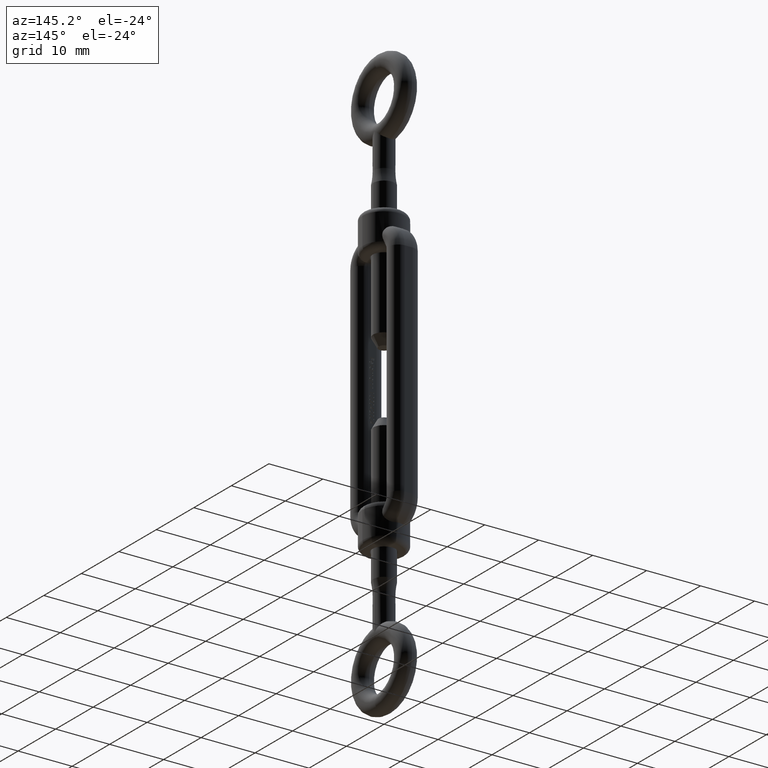
[diagram: clean part render]
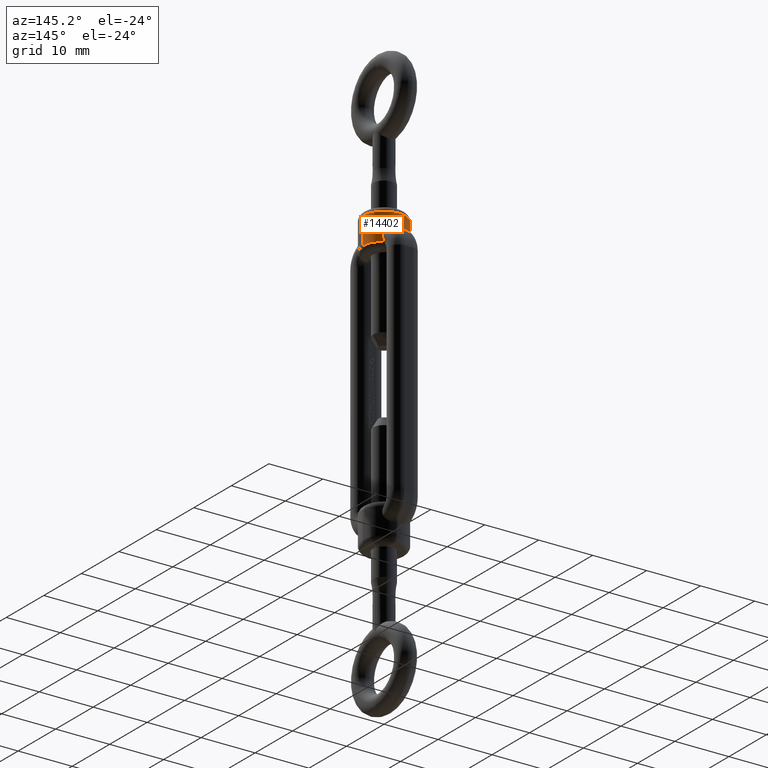
[diagram: same view with one face highlighted and labeled with its STEP entity id]
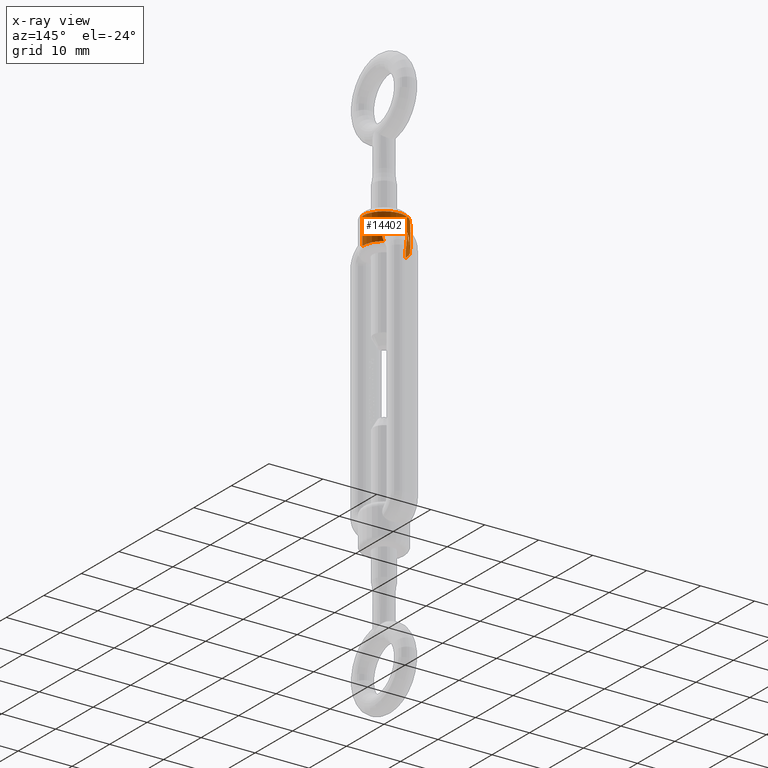
[diagram: x-ray of the same camera — body ghosted, the highlighted face saturated]
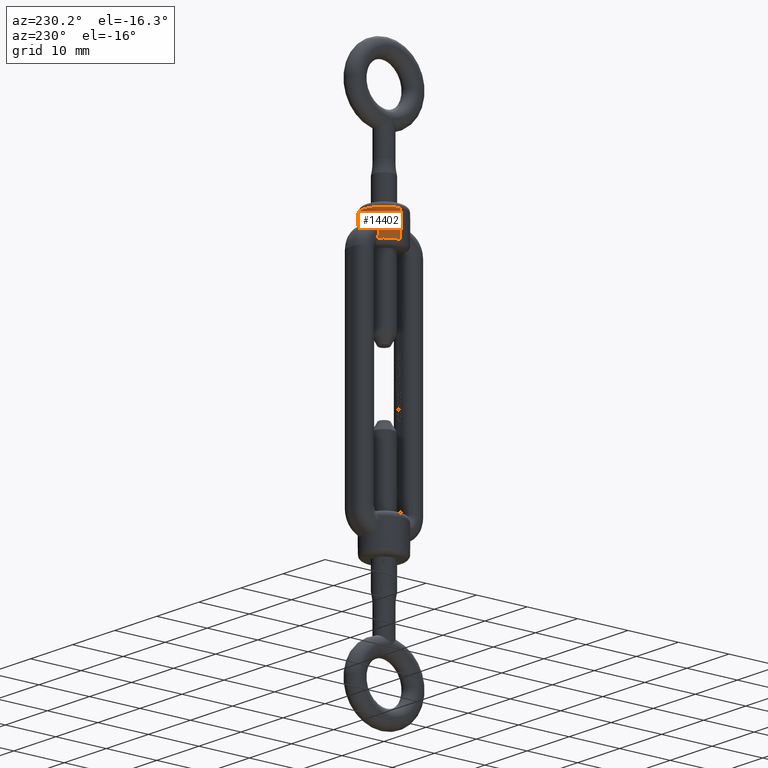
[diagram: same view with one face highlighted and labeled with its STEP entity id]
A machine part, auxiliary view. The second image highlights one B-rep face of the part: STEP entity #14402.
The next image is the same camera in x-ray: the body ghosted, the highlighted face saturated — about 0% of this face is hidden behind the body in this view.
A second angle (auxiliary view) of the same face is appended — the face is thin or edge-on in the first view.
In plain terms, the highlighted cylindrical surface (edge-blend (fillet) strip) has radius 4 mm, axis along (0, 0, 1).
Its self-contained STEP definition (entity closure, byte-faithful):
#44 = B_SPLINE_CURVE_WITH_KNOTS ( 'NONE', 3,
 ( #12608, #4711, #7086, #9962, #164, #8819 ),
 .UNSPECIFIED., .F., .F.,
 ( 4, 2, 4 ),
 ( 0.01544804769780907400, 0.01619815528980365900, 0.01694826288179824400 ),
 .UNSPECIFIED. ) ;
#116 = VERTEX_POINT ( 'NONE', #6090 ) ;
#149 = CARTESIAN_POINT ( 'NONE',  ( -3.751007808618376200, 1.436732997976390800, 23.84973040197650500 ) ) ;
#164 = CARTESIAN_POINT ( 'NONE',  ( -0.5030686637908309300, 3.976194005394788600, 24.59054489174957300 ) ) ;
#261 = VERTEX_POINT ( 'NONE', #11593 ) ;
#341 = CARTESIAN_POINT ( 'NONE',  ( -3.999746300806086700, 0.04505029620504721900, 26.00000000000000400 ) ) ;
#567 = EDGE_CURVE ( 'NONE', #12286, #14681, #7675, .T. ) ;
#644 = DIRECTION ( 'NONE',  ( 0.0000000000000000000, 0.0000000000000000000, -1.000000000000000000 ) ) ;
#734 = EDGE_CURVE ( 'NONE', #2989, #13891, #4390, .T. ) ;
#755 = VERTEX_POINT ( 'NONE', #2348 ) ;
#896 = VECTOR ( 'NONE', #10374, 1000.000000000000000 ) ;
#985 = CARTESIAN_POINT ( 'NONE',  ( -0.9102807958134557800, 3.898463142923327400, 24.62512443992188000 ) ) ;
#1045 = DIRECTION ( 'NONE',  ( -0.9947591092094586500, -0.1022463429409802100, 0.0000000000000000000 ) ) ;
#1156 = VERTEX_POINT ( 'NONE', #15245 ) ;
#1205 = B_SPLINE_CURVE_WITH_KNOTS ( 'NONE', 3,
 ( #16442, #12308, #4401, #5743 ),
 .UNSPECIFIED., .F., .F.,
 ( 4, 4 ),
 ( 0.0000000000000000000, 1.000000000000000000 ),
 .UNSPECIFIED. ) ;
#1614 = ORIENTED_EDGE ( 'NONE', *, *, #5970, .T. ) ;
#1664 = CARTESIAN_POINT ( 'NONE',  ( -3.580343073188381200, 1.783576036582718200, 26.00000000000001100 ) ) ;
#1675 = DIRECTION ( 'NONE',  ( -0.0000000000000000000, -0.0000000000000000000, 1.000000000000000000 ) ) ;
#1724 = CARTESIAN_POINT ( 'NONE',  ( 2.381679117500231000, 3.214948020150076000, 23.71540290496990300 ) ) ;
#1776 = CARTESIAN_POINT ( 'NONE',  ( 2.497682262829631600, 3.124604971914043600, 23.24924549251396800 ) ) ;
#1852 = CARTESIAN_POINT ( 'NONE',  ( -2.285367486464756800, 3.282848679395671300, 22.00000000000001100 ) ) ;
#2034 = ORIENTED_EDGE ( 'NONE', *, *, #17052, .T. ) ;
#2086 = CARTESIAN_POINT ( 'NONE',  ( -3.999999962768070900, 6.965656207273475000E-010, 25.73349608423637500 ) ) ;
#2089 = DIRECTION ( 'NONE',  ( -0.9999365752015174600, 0.01126257405126154600, 0.0000000000000000000 ) ) ;
#2109 = VERTEX_POINT ( 'NONE', #8388 ) ;
#2112 = CARTESIAN_POINT ( 'NONE',  ( -2.432289659441127400, 3.175789167133020300, 23.57552887162764300 ) ) ;
#2348 = CARTESIAN_POINT ( 'NONE',  ( -3.343884918635637000, 2.195093084796469400, 23.28632478632479400 ) ) ;
#2507 = AXIS2_PLACEMENT_3D ( 'NONE', #14083, #11742, #2089 ) ;
#2635 = ORIENTED_EDGE ( 'NONE', *, *, #4823, .T. ) ;
#2757 = ORIENTED_EDGE ( 'NONE', *, *, #3494, .F. ) ;
#2784 = ORIENTED_EDGE ( 'NONE', *, *, #567, .T. ) ;
#2962 = DIRECTION ( 'NONE',  ( 0.0000000000000000000, 0.0000000000000000000, 1.000000000000000000 ) ) ;
#2989 = VERTEX_POINT ( 'NONE', #14394 ) ;
#3004 = DIRECTION ( 'NONE',  ( -0.0000000000000000000, -0.0000000000000000000, 1.000000000000000000 ) ) ;
#3051 = CARTESIAN_POINT ( 'NONE',  ( 2.232963278390116500, 3.319964034197485400, 23.98604057360628900 ) ) ;
#3121 = CARTESIAN_POINT ( 'NONE',  ( 4.000000000000017800, 4.730167233106488900E-017, 21.00000000000000000 ) ) ;
#3234 = VERTEX_POINT ( 'NONE', #8894 ) ;
#3452 = CARTESIAN_POINT ( 'NONE',  ( -1.915807076917278600, 3.513640479461432900, 24.31116552042230300 ) ) ;
#3460 = DIRECTION ( 'NONE',  ( -0.0000000000000000000, -0.0000000000000000000, 1.000000000000000000 ) ) ;
#3467 = CARTESIAN_POINT ( 'NONE',  ( -3.999230877813573700, 0.07843714644613913900, 23.35416666666667100 ) ) ;
#3494 = EDGE_CURVE ( 'NONE', #16789, #7013, #10937, .T. ) ;
#3517 = CARTESIAN_POINT ( 'NONE',  ( -2.496662105179641600, 3.125435674280249800, 23.25929025545020700 ) ) ;
#3558 = VERTEX_POINT ( 'NONE', #3467 ) ;
#3678 = DIRECTION ( 'NONE',  ( -0.0000000000000000000, -0.0000000000000000000, 1.000000000000000000 ) ) ;
#3688 = CARTESIAN_POINT ( 'NONE',  ( -1.519110280752453500, 3.703287374382887800, 24.52220438770821100 ) ) ;
#3760 = VERTEX_POINT ( 'NONE', #14406 ) ;
#3773 = LINE ( 'NONE', #4378, #6295 ) ;
#3917 = VERTEX_POINT ( 'NONE', #10146 ) ;
#3947 = DIRECTION ( 'NONE',  ( 0.0000000000000000000, 0.0000000000000000000, -1.000000000000000000 ) ) ;
#4034 = VERTEX_POINT ( 'NONE', #13330 ) ;
#4143 = EDGE_LOOP ( 'NONE', ( #2784, #13446, #13108, #11016, #6956, #2635, #5831, #9999, #2757, #11992, #10859, #13642, #4812 ) ) ;
#4181 = DIRECTION ( 'NONE',  ( -0.8359712296589055800, 0.5487732711991149000, 0.0000000000000000000 ) ) ;
#4234 = CARTESIAN_POINT ( 'NONE',  ( -3.580343073188381200, 1.783576036582718200, 26.00000000000001100 ) ) ;
#4294 = AXIS2_PLACEMENT_3D ( 'NONE', #4370, #12173, #16078 ) ;
#4370 = CARTESIAN_POINT ( 'NONE',  ( 0.0000000000000000000, 4.730167233106488900E-017, 25.45726495726496500 ) ) ;
#4378 = CARTESIAN_POINT ( 'NONE',  ( -3.933699122301495900, 0.7252663064037766500, 25.45726495726496500 ) ) ;
#4387 = CARTESIAN_POINT ( 'NONE',  ( 1.918844120918642600, 3.512028818488437800, 24.30915524562822900 ) ) ;
#4390 = LINE ( 'NONE', #12812, #896 ) ;
#4401 = CARTESIAN_POINT ( 'NONE',  ( -3.985038137113845900, 0.3764373470795593400, 25.11805555555556100 ) ) ;
#4563 = ORIENTED_EDGE ( 'NONE', *, *, #14780, .T. ) ;
#4570 = ORIENTED_EDGE ( 'NONE', *, *, #8913, .F. ) ;
#4703 = LINE ( 'NONE', #1664, #5550 ) ;
#4704 = CARTESIAN_POINT ( 'NONE',  ( -3.999915431814149400, 0.03003416577232715200, 25.91116536145137100 ) ) ;
#4711 = CARTESIAN_POINT ( 'NONE',  ( 0.5020925574299954800, 3.976380329876120900, 24.59046200296932100 ) ) ;
#4719 = DIRECTION ( 'NONE',  ( -0.9834247805753698600, 0.1813165766009433900, 0.0000000000000000000 ) ) ;
#4812 = ORIENTED_EDGE ( 'NONE', *, *, #13356, .T. ) ;
#4823 = EDGE_CURVE ( 'NONE', #10771, #10668, #7756, .T. ) ;
#4832 = DIRECTION ( 'NONE',  ( -0.0000000000000000000, -0.0000000000000000000, 1.000000000000000000 ) ) ;
#4916 = VECTOR ( 'NONE', #6039, 1000.000000000000000 ) ;
#4959 = EDGE_LOOP ( 'NONE', ( #4570, #13208, #5283, #11386, #6690, #11414, #4563, #1614, #6594, #2034, #5389 ) ) ;
#5022 = CARTESIAN_POINT ( 'NONE',  ( -1.371804169242107200, 3.760827196330431800, 24.56759669714697100 ) ) ;
#5027 = CARTESIAN_POINT ( 'NONE',  ( 0.0000000000000000000, 4.730167233106488900E-017, 23.35416666666666800 ) ) ;
#5181 = CARTESIAN_POINT ( 'NONE',  ( 0.0000000000000000000, 4.730167233106488900E-017, 21.00000000000000000 ) ) ;
#5283 = ORIENTED_EDGE ( 'NONE', *, *, #7261, .F. ) ;
#5389 = ORIENTED_EDGE ( 'NONE', *, *, #12475, .T. ) ;
#5550 = VECTOR ( 'NONE', #10895, 1000.000000000000000 ) ;
#5727 = CARTESIAN_POINT ( 'NONE',  ( 2.138963950322114300, 3.382475779883685100, 24.10548879790942300 ) ) ;
#5743 = CARTESIAN_POINT ( 'NONE',  ( -3.965494860306135300, 0.5242618743393187000, 26.00000000000000400 ) ) ;
#5831 = ORIENTED_EDGE ( 'NONE', *, *, #14603, .T. ) ;
#5947 = VERTEX_POINT ( 'NONE', #4234 ) ;
#5970 = EDGE_CURVE ( 'NONE', #5947, #3917, #4703, .T. ) ;
#6039 = DIRECTION ( 'NONE',  ( -0.0000000000000000000, -0.0000000000000000000, 1.000000000000000000 ) ) ;
#6073 = CARTESIAN_POINT ( 'NONE',  ( -3.343884918635637000, 2.195093084796469800, 26.00000000000001100 ) ) ;
#6090 = CARTESIAN_POINT ( 'NONE',  ( -0.7499999999999983300, 3.929058411375446100, 24.61151375137878400 ) ) ;
#6136 = CARTESIAN_POINT ( 'NONE',  ( 0.0000000000000000000, 4.730167233106488900E-017, 26.00000000000001100 ) ) ;
#6190 = CARTESIAN_POINT ( 'NONE',  ( -2.505790819555485400, 3.117876125599464900, 23.09608957247214900 ) ) ;
#6295 = VECTOR ( 'NONE', #644, 1000.000000000000000 ) ;
#6339 = CARTESIAN_POINT ( 'NONE',  ( 4.000000000000017800, 4.730167233106488900E-017, 27.00000000000000000 ) ) ;
#6365 = DIRECTION ( 'NONE',  ( -0.0000000000000000000, -0.0000000000000000000, 1.000000000000000000 ) ) ;
#6368 = CARTESIAN_POINT ( 'NONE',  ( -2.229038536411676900, 3.322603432206729000, 23.99141542557785600 ) ) ;
#6413 = AXIS2_PLACEMENT_3D ( 'NONE', #11843, #3947, #13193 ) ;
#6525 = DIRECTION ( 'NONE',  ( 1.000000000000000000, 0.0000000000000000000, 0.0000000000000000000 ) ) ;
#6593 = CIRCLE ( 'NONE', #14805, 4.000000000000016900 ) ;
#6594 = ORIENTED_EDGE ( 'NONE', *, *, #11550, .T. ) ;
#6622 = CARTESIAN_POINT ( 'NONE',  ( -3.589278204034342100, 1.765525976598517200, 23.28632478632479400 ) ) ;
#6625 = VERTEX_POINT ( 'NONE', #11687 ) ;
#6690 = ORIENTED_EDGE ( 'NONE', *, *, #14156, .T. ) ;
#6838 = EDGE_CURVE ( 'NONE', #14681, #4034, #10486, .T. ) ;
#6904 = LINE ( 'NONE', #8315, #8514 ) ;
#6956 = ORIENTED_EDGE ( 'NONE', *, *, #14399, .T. ) ;
#7013 = VERTEX_POINT ( 'NONE', #6339 ) ;
#7086 = CARTESIAN_POINT ( 'NONE',  ( 0.2528672907226529000, 3.999853844676281200, 24.57928368646079100 ) ) ;
#7261 = EDGE_CURVE ( 'NONE', #261, #11000, #10055, .T. ) ;
#7376 = DIRECTION ( 'NONE',  ( -0.0000000000000000000, -0.0000000000000000000, 1.000000000000000000 ) ) ;
#7494 = CARTESIAN_POINT ( 'NONE',  ( -2.389663278387285300, 3.210242770591273900, 22.30010719318572400 ) ) ;
#7675 = CIRCLE ( 'NONE', #14632, 4.000000000000017800 ) ;
#7756 = B_SPLINE_CURVE_WITH_KNOTS ( 'NONE', 3,
 ( #13840, #4704, #12601, #2086 ),
 .UNSPECIFIED., .F., .F.,
 ( 4, 4 ),
 ( 0.0000000000000000000, 0.1594746716697898500 ),
 .UNSPECIFIED. ) ;
#8112 = EDGE_CURVE ( 'NONE', #3558, #11089, #1205, .T. ) ;
#8294 = CARTESIAN_POINT ( 'NONE',  ( 2.388727490320234900, 3.210894222982988700, 22.29741449844380000 ) ) ;
#8315 = CARTESIAN_POINT ( 'NONE',  ( -3.343884918635637000, 2.195093084796469400, 23.28632478632479400 ) ) ;
#8346 = FACE_OUTER_BOUND ( 'NONE', #4143, .T. ) ;
#8388 = CARTESIAN_POINT ( 'NONE',  ( -3.207767226681403900, 2.389608633108951900, 25.45726495726496500 ) ) ;
#8498 = DIRECTION ( 'NONE',  ( -0.0000000000000000000, -0.0000000000000000000, 1.000000000000000000 ) ) ;
#8514 = VECTOR ( 'NONE', #2962, 1000.000000000000000 ) ;
#8565 = CIRCLE ( 'NONE', #2507, 4.000000000000017800 ) ;
#8755 = CIRCLE ( 'NONE', #14605, 4.000000000000017800 ) ;
#8819 = CARTESIAN_POINT ( 'NONE',  ( -0.7499999999999983300, 3.929058411375446100, 24.61151375137878400 ) ) ;
#8877 = B_SPLINE_CURVE_WITH_KNOTS ( 'NONE', 3,
 ( #12299, #8294, #9639, #16376, #1776, #13463, #1724, #3051, #5727, #4387, #13638, #9702, #14812, #11010 ),
 .UNSPECIFIED., .F., .F.,
 ( 4, 2, 2, 2, 2, 2, 4 ),
 ( 2.151219171367725800E-007, 0.0009599175930082071200, 0.001439768828553737000, 0.001919620064099267300, 0.002399471299644797100, 0.002879322535190327100, 0.003839025006281387100 ),
 .UNSPECIFIED. ) ;
#8894 = CARTESIAN_POINT ( 'NONE',  ( -3.933699122301495900, 0.7252663064037766500, 25.45726495726496500 ) ) ;
#8913 = EDGE_CURVE ( 'NONE', #755, #3760, #15726, .T. ) ;
#8971 = CARTESIAN_POINT ( 'NONE',  ( -1.066627542642636400, 3.858493691155238500, 24.61884925725691500 ) ) ;
#9010 = CIRCLE ( 'NONE', #6413, 4.000000000000017800 ) ;
#9017 = EDGE_CURVE ( 'NONE', #261, #2109, #16390, .T. ) ;
#9362 = CARTESIAN_POINT ( 'NONE',  ( 0.0000000000000000000, 4.730167233106488900E-017, 25.01629273504274300 ) ) ;
#9392 = CARTESIAN_POINT ( 'NONE',  ( -3.207767226681404300, 2.389608633108951000, 25.01629273504274300 ) ) ;
#9419 = CIRCLE ( 'NONE', #4294, 4.000000000000017800 ) ;
#9639 = CARTESIAN_POINT ( 'NONE',  ( 2.476077322336597900, 3.141606131721941300, 22.59870862083341300 ) ) ;
#9702 = CARTESIAN_POINT ( 'NONE',  ( 1.386212166809353900, 3.764010895535079700, 24.58570348846352600 ) ) ;
#9875 = CARTESIAN_POINT ( 'NONE',  ( -4.000000000000017800, 5.371603919900082900E-016, 22.00000000000000400 ) ) ;
#9908 = DIRECTION ( 'NONE',  ( 1.000000000000000000, 0.0000000000000000000, 0.0000000000000000000 ) ) ;
#9962 = CARTESIAN_POINT ( 'NONE',  ( -0.2482220199762894300, 4.000144806664869700, 24.57914816346022500 ) ) ;
#9978 = CARTESIAN_POINT ( 'NONE',  ( 0.0000000000000000000, 4.730167233106488900E-017, 22.00000000000000400 ) ) ;
#9999 = ORIENTED_EDGE ( 'NONE', *, *, #12561, .T. ) ;
#10055 = CIRCLE ( 'NONE', #13874, 4.000000000000017800 ) ;
#10096 = CARTESIAN_POINT ( 'NONE',  ( -2.285367486464756800, 3.282848679395671300, 22.00000000000001100 ) ) ;
#10146 = CARTESIAN_POINT ( 'NONE',  ( -3.580343073188380300, 1.783576036582719300, 25.45726495726496500 ) ) ;
#10194 = B_SPLINE_CURVE_WITH_KNOTS ( 'NONE', 3,
 ( #15984, #17074, #149, #6622 ),
 .UNSPECIFIED., .F., .F.,
 ( 4, 4 ),
 ( 0.0000000000000000000, 1.000000000000000000 ),
 .UNSPECIFIED. ) ;
#10202 = CARTESIAN_POINT ( 'NONE',  ( -3.999999962768070900, 6.965656207273475000E-010, 25.73349608423637500 ) ) ;
#10374 = DIRECTION ( 'NONE',  ( 0.0000000000000000000, 0.0000000000000000000, 1.000000000000000000 ) ) ;
#10486 = LINE ( 'NONE', #11149, #4916 ) ;
#10668 = VERTEX_POINT ( 'NONE', #10202 ) ;
#10771 = VERTEX_POINT ( 'NONE', #341 ) ;
#10831 = LINE ( 'NONE', #14979, #13340 ) ;
#10859 = ORIENTED_EDGE ( 'NONE', *, *, #13254, .T. ) ;
#10895 = DIRECTION ( 'NONE',  ( 0.0000000000000000000, 0.0000000000000000000, -1.000000000000000000 ) ) ;
#10937 = LINE ( 'NONE', #3121, #13646 ) ;
#11000 = VERTEX_POINT ( 'NONE', #14130 ) ;
#11010 = CARTESIAN_POINT ( 'NONE',  ( 0.7499999999999941200, 3.929058411375448300, 24.61151375137878400 ) ) ;
#11015 = DIRECTION ( 'NONE',  ( -0.0000000000000000000, -0.0000000000000000000, 1.000000000000000000 ) ) ;
#11016 = ORIENTED_EDGE ( 'NONE', *, *, #8112, .T. ) ;
#11017 = VERTEX_POINT ( 'NONE', #12901 ) ;
#11041 = CIRCLE ( 'NONE', #14176, 4.000000000000016900 ) ;
#11089 = VERTEX_POINT ( 'NONE', #11905 ) ;
#11149 = CARTESIAN_POINT ( 'NONE',  ( -4.000000000000017800, 5.371603919900082900E-016, 21.00000000000000000 ) ) ;
#11242 = AXIS2_PLACEMENT_3D ( 'NONE', #5027, #14284, #1045 ) ;
#11296 = DIRECTION ( 'NONE',  ( -0.8950857682970915200, 0.4458940091456776700, 0.0000000000000000000 ) ) ;
#11319 = AXIS2_PLACEMENT_3D ( 'NONE', #16922, #6365, #16875 ) ;
#11386 = ORIENTED_EDGE ( 'NONE', *, *, #9017, .T. ) ;
#11414 = ORIENTED_EDGE ( 'NONE', *, *, #734, .T. ) ;
#11550 = EDGE_CURVE ( 'NONE', #3917, #3234, #6593, .T. ) ;
#11593 = CARTESIAN_POINT ( 'NONE',  ( -3.207767226681404300, 2.389608633108951000, 25.01629273504274300 ) ) ;
#11687 = CARTESIAN_POINT ( 'NONE',  ( -4.000000000000017800, 5.371603919900082900E-016, 27.00000000000000000 ) ) ;
#11742 = DIRECTION ( 'NONE',  ( -0.0000000000000000000, -0.0000000000000000000, 1.000000000000000000 ) ) ;
#11788 = EDGE_CURVE ( 'NONE', #15524, #116, #44, .T. ) ;
#11843 = CARTESIAN_POINT ( 'NONE',  ( 0.0000000000000000000, 4.730167233106488900E-017, 27.00000000000000000 ) ) ;
#11905 = CARTESIAN_POINT ( 'NONE',  ( -3.965494860306135300, 0.5242618743393187000, 26.00000000000000400 ) ) ;
#11992 = ORIENTED_EDGE ( 'NONE', *, *, #14247, .T. ) ;
#12173 = DIRECTION ( 'NONE',  ( -0.0000000000000000000, -0.0000000000000000000, 1.000000000000000000 ) ) ;
#12286 = VERTEX_POINT ( 'NONE', #1852 ) ;
#12299 = CARTESIAN_POINT ( 'NONE',  ( 2.285367486464756000, 3.282848679395671300, 22.00000000000000400 ) ) ;
#12308 = CARTESIAN_POINT ( 'NONE',  ( -3.996306921409275200, 0.2275192748415302000, 24.23611111111111400 ) ) ;
#12475 = EDGE_CURVE ( 'NONE', #11017, #3760, #10194, .T. ) ;
#12561 = EDGE_CURVE ( 'NONE', #6625, #7013, #9010, .T. ) ;
#12601 = CARTESIAN_POINT ( 'NONE',  ( -4.000000000000017800, 0.01501708288818024400, 25.82233072290274100 ) ) ;
#12608 = CARTESIAN_POINT ( 'NONE',  ( 0.7499999999999941200, 3.929058411375448300, 24.61151375137878400 ) ) ;
#12812 = CARTESIAN_POINT ( 'NONE',  ( -3.343884918635637000, 2.195093084796469400, 25.45726495726496500 ) ) ;
#12894 = CARTESIAN_POINT ( 'NONE',  ( 0.7499999999999941200, 3.929058411375448300, 24.61151375137878400 ) ) ;
#12901 = CARTESIAN_POINT ( 'NONE',  ( -3.933699122301495900, 0.7252663064037766500, 24.97654163327992200 ) ) ;
#13108 = ORIENTED_EDGE ( 'NONE', *, *, #14826, .F. ) ;
#13193 = DIRECTION ( 'NONE',  ( -1.000000000000000000, 0.0000000000000000000, 0.0000000000000000000 ) ) ;
#13208 = ORIENTED_EDGE ( 'NONE', *, *, #16029, .T. ) ;
#13219 = DIRECTION ( 'NONE',  ( 0.0000000000000000000, 0.0000000000000000000, 1.000000000000000000 ) ) ;
#13254 = EDGE_CURVE ( 'NONE', #1156, #15524, #8877, .T. ) ;
#13330 = CARTESIAN_POINT ( 'NONE',  ( -4.000000000000017800, 5.371603919900082900E-016, 23.35416666666666800 ) ) ;
#13340 = VECTOR ( 'NONE', #11015, 1000.000000000000000 ) ;
#13356 = EDGE_CURVE ( 'NONE', #116, #12286, #15604, .T. ) ;
#13446 = ORIENTED_EDGE ( 'NONE', *, *, #6838, .T. ) ;
#13463 = CARTESIAN_POINT ( 'NONE',  ( 2.435236385432428800, 3.173514875280989000, 23.56578017992050200 ) ) ;
#13547 = CYLINDRICAL_SURFACE ( 'NONE', #13705, 4.000000000000017800 ) ;
#13638 = CARTESIAN_POINT ( 'NONE',  ( 1.794267954794491700, 3.578120044754975900, 24.39218967301063400 ) ) ;
#13642 = ORIENTED_EDGE ( 'NONE', *, *, #11788, .T. ) ;
#13646 = VECTOR ( 'NONE', #1675, 1000.000000000000000 ) ;
#13705 = AXIS2_PLACEMENT_3D ( 'NONE', #5181, #4832, #6525 ) ;
#13840 = CARTESIAN_POINT ( 'NONE',  ( -3.999746300806086700, 0.04505029620504721900, 26.00000000000000400 ) ) ;
#13859 = DIRECTION ( 'NONE',  ( 1.000000000000000000, 0.0000000000000000000, 0.0000000000000000000 ) ) ;
#13874 = AXIS2_PLACEMENT_3D ( 'NONE', #9362, #3004, #4181 ) ;
#13890 = CARTESIAN_POINT ( 'NONE',  ( 0.0000000000000000000, 4.730167233106488900E-017, 22.00000000000000400 ) ) ;
#13891 = VERTEX_POINT ( 'NONE', #6073 ) ;
#13913 = CARTESIAN_POINT ( 'NONE',  ( -0.7499999999999983300, 3.929058411375446100, 24.61151375137878400 ) ) ;
#14083 = CARTESIAN_POINT ( 'NONE',  ( 0.0000000000000000000, 4.730167233106488900E-017, 26.00000000000000400 ) ) ;
#14101 = CARTESIAN_POINT ( 'NONE',  ( -2.478139809287710700, 3.139964928057228800, 22.60798330392394500 ) ) ;
#14130 = CARTESIAN_POINT ( 'NONE',  ( -3.343884918635637000, 2.195093084796469400, 25.01629273504274300 ) ) ;
#14156 = EDGE_CURVE ( 'NONE', #2109, #2989, #9419, .T. ) ;
#14176 = AXIS2_PLACEMENT_3D ( 'NONE', #6136, #3460, #11296 ) ;
#14247 = EDGE_CURVE ( 'NONE', #16789, #1156, #8755, .T. ) ;
#14279 = CARTESIAN_POINT ( 'NONE',  ( -2.378056580479059000, 3.217631623502056100, 23.72367511925732900 ) ) ;
#14284 = DIRECTION ( 'NONE',  ( -0.0000000000000000000, -0.0000000000000000000, 1.000000000000000000 ) ) ;
#14394 = CARTESIAN_POINT ( 'NONE',  ( -3.343884918635637000, 2.195093084796469400, 25.45726495726496500 ) ) ;
#14399 = EDGE_CURVE ( 'NONE', #11089, #10771, #8565, .T. ) ;
#14402 = ADVANCED_FACE ( 'NONE', ( #15845, #8346 ), #13547, .T. ) ;
#14406 = CARTESIAN_POINT ( 'NONE',  ( -3.589278204034342100, 1.765525976598517200, 23.28632478632479400 ) ) ;
#14603 = EDGE_CURVE ( 'NONE', #10668, #6625, #10831, .T. ) ;
#14605 = AXIS2_PLACEMENT_3D ( 'NONE', #13890, #8498, #9908 ) ;
#14632 = AXIS2_PLACEMENT_3D ( 'NONE', #9978, #7376, #13859 ) ;
#14681 = VERTEX_POINT ( 'NONE', #9875 ) ;
#14726 = VECTOR ( 'NONE', #13219, 1000.000000000000000 ) ;
#14780 = EDGE_CURVE ( 'NONE', #13891, #5947, #11041, .T. ) ;
#14805 = AXIS2_PLACEMENT_3D ( 'NONE', #16816, #3678, #4719 ) ;
#14812 = CARTESIAN_POINT ( 'NONE',  ( 1.071047328436502700, 3.867775154392166600, 24.63877637615439700 ) ) ;
#14826 = EDGE_CURVE ( 'NONE', #3558, #4034, #16455, .T. ) ;
#14979 = CARTESIAN_POINT ( 'NONE',  ( -4.000000000000017800, 5.371603919900082900E-016, 21.00000000000000000 ) ) ;
#15245 = CARTESIAN_POINT ( 'NONE',  ( 2.285367486464756000, 3.282848679395671300, 22.00000000000000400 ) ) ;
#15431 = CARTESIAN_POINT ( 'NONE',  ( -2.133886989436875500, 3.385633248180957000, 24.11095676014380400 ) ) ;
#15493 = CARTESIAN_POINT ( 'NONE',  ( -1.789405841620872200, 3.580511158525357700, 24.39495596793365100 ) ) ;
#15524 = VERTEX_POINT ( 'NONE', #12894 ) ;
#15604 = B_SPLINE_CURVE_WITH_KNOTS ( 'NONE', 3,
 ( #13913, #985, #8971, #5022, #3688, #15493, #3452, #15431, #6368, #14279, #2112, #3517, #6190, #14101, #7494, #10096 ),
 .UNSPECIFIED., .F., .F.,
 ( 4, 2, 2, 2, 2, 2, 2, 4 ),
 ( 2.014117449052203000E-007, 0.0004844429265932993400, 0.0009686844414416934600, 0.001452925956290087400, 0.001937167471138482000, 0.002421408985986876700, 0.002905650500835270900, 0.003874133530532049400 ),
 .UNSPECIFIED. ) ;
#15726 = CIRCLE ( 'NONE', #11319, 4.000000000000016900 ) ;
#15845 = FACE_BOUND ( 'NONE', #4959, .T. ) ;
#15984 = CARTESIAN_POINT ( 'NONE',  ( -3.933699122301495900, 0.7252663064037766500, 24.97654163327992200 ) ) ;
#15990 = CARTESIAN_POINT ( 'NONE',  ( 4.000000000000017800, 4.730167233106488900E-017, 22.00000000000000400 ) ) ;
#16029 = EDGE_CURVE ( 'NONE', #755, #11000, #6904, .T. ) ;
#16078 = DIRECTION ( 'NONE',  ( -0.8359712296589055800, 0.5487732711991149000, 0.0000000000000000000 ) ) ;
#16376 = CARTESIAN_POINT ( 'NONE',  ( 2.505915121698893500, 3.117779883364031300, 23.08535089372180600 ) ) ;
#16390 = LINE ( 'NONE', #9392, #14726 ) ;
#16442 = CARTESIAN_POINT ( 'NONE',  ( -3.999230877813573700, 0.07843714644613913900, 23.35416666666667100 ) ) ;
#16455 = CIRCLE ( 'NONE', #11242, 4.000000000000016900 ) ;
#16789 = VERTEX_POINT ( 'NONE', #15990 ) ;
#16816 = CARTESIAN_POINT ( 'NONE',  ( 0.0000000000000000000, 4.730167233106488900E-017, 25.45726495726496500 ) ) ;
#16875 = DIRECTION ( 'NONE',  ( -0.8973195510085817400, 0.4413814941496274100, 0.0000000000000000000 ) ) ;
#16922 = CARTESIAN_POINT ( 'NONE',  ( 0.0000000000000000000, 4.730167233106488900E-017, 23.28632478632479400 ) ) ;
#17052 = EDGE_CURVE ( 'NONE', #3234, #11017, #3773, .T. ) ;
#17074 = CARTESIAN_POINT ( 'NONE',  ( -3.867261678441965800, 1.085609689641947200, 24.41313601762821500 ) ) ;